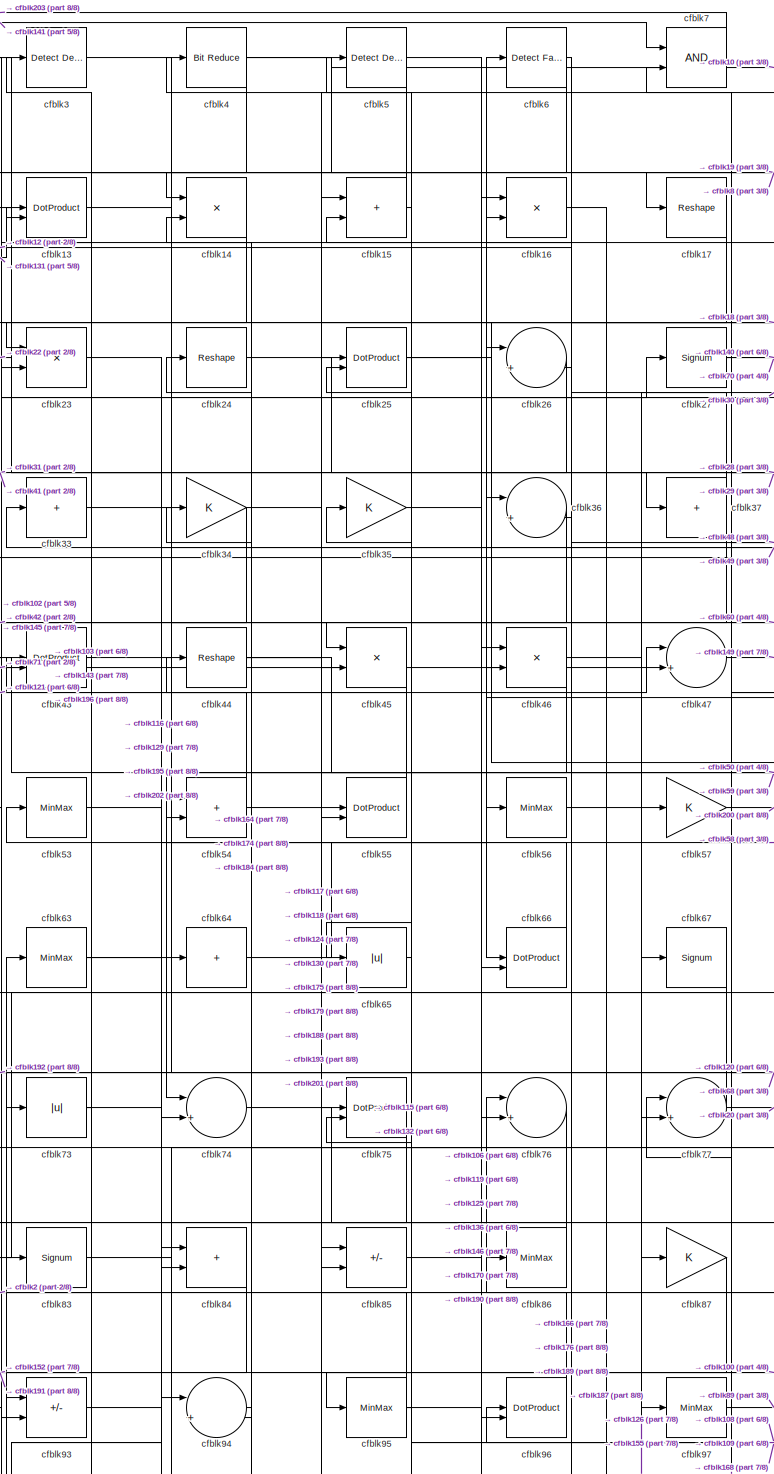
[diagram: root canvas - part 1/8, top center region]
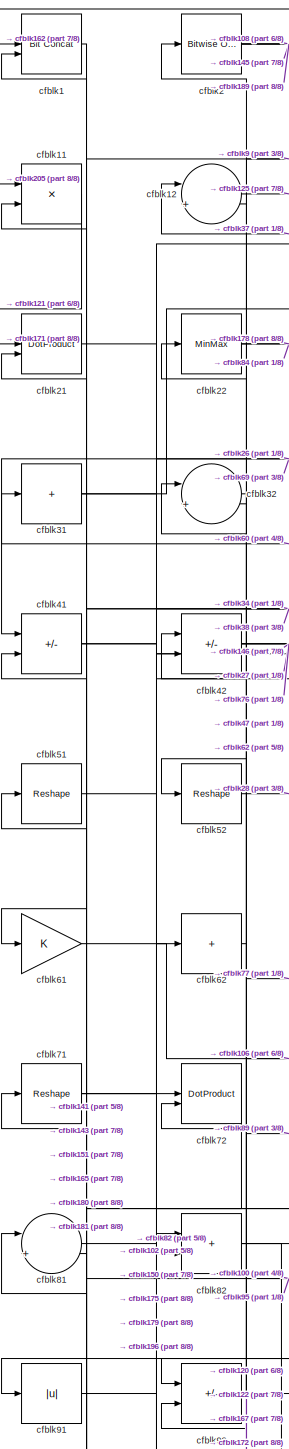
[diagram: root canvas - part 2/8, top left region]
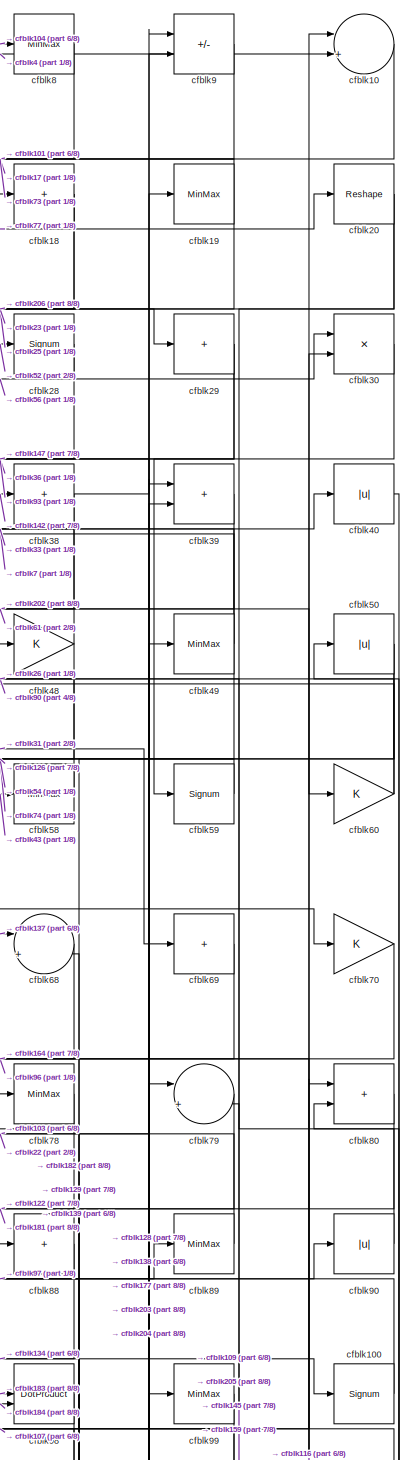
[diagram: root canvas - part 3/8, top right region]
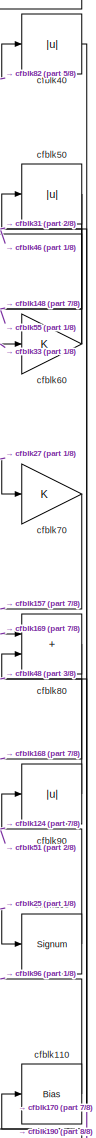
[diagram: root canvas - part 4/8, middle right region]
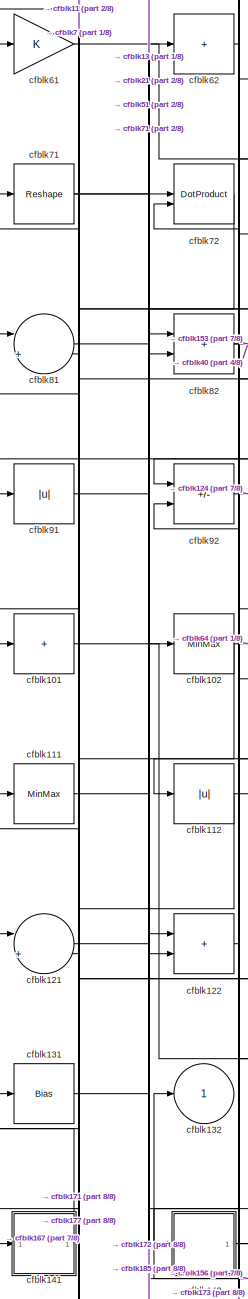
[diagram: root canvas - part 5/8, middle left region]
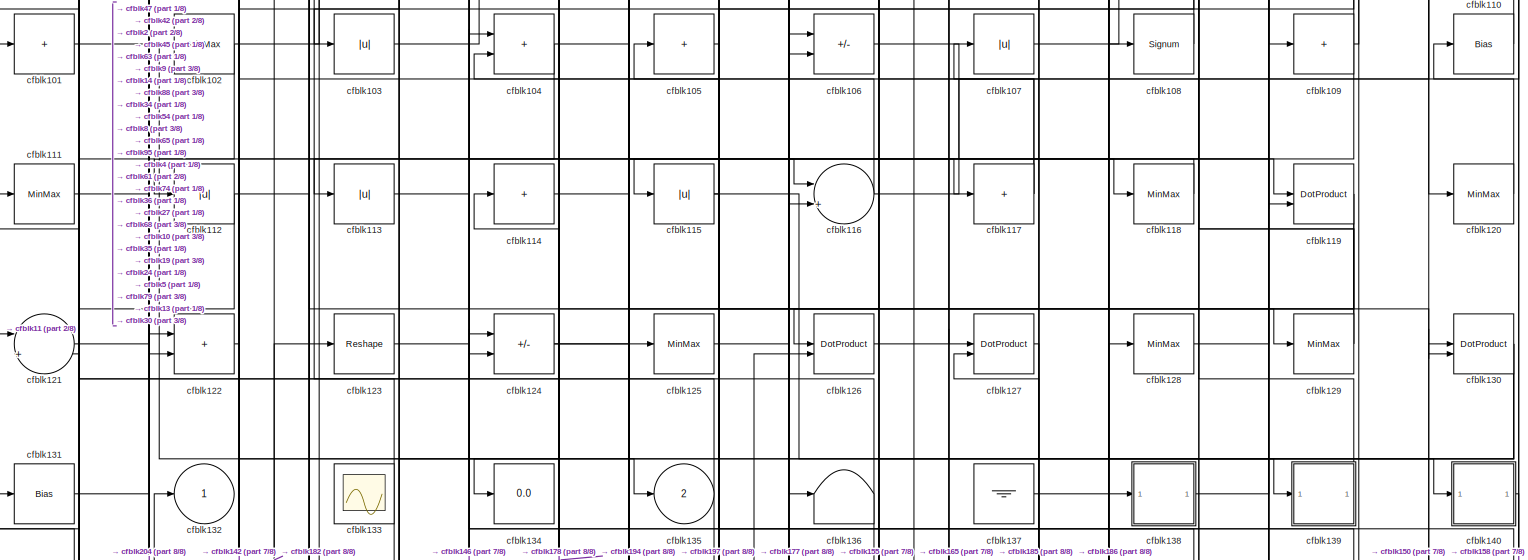
[diagram: root canvas - part 6/8, full width, middle band]
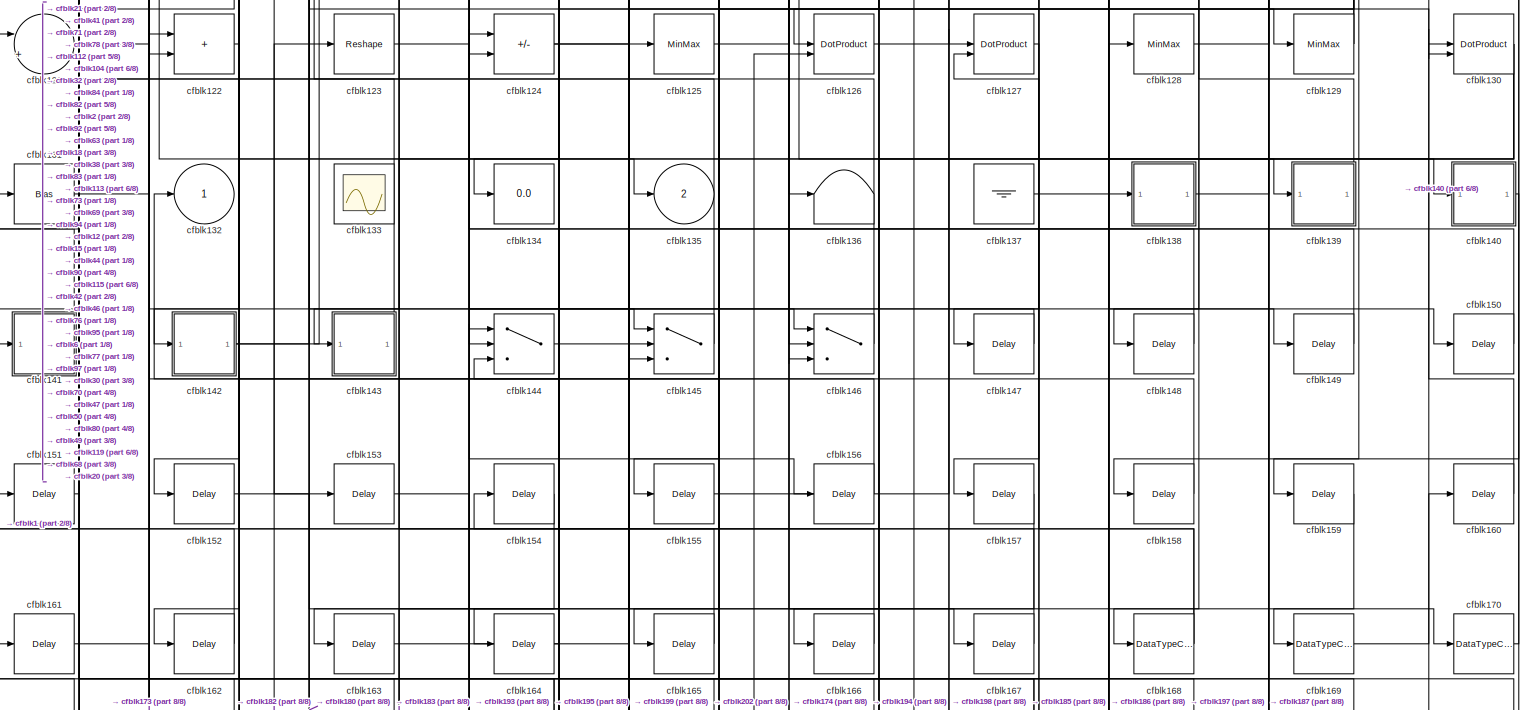
[diagram: root canvas - part 7/8, full width, bottom band]
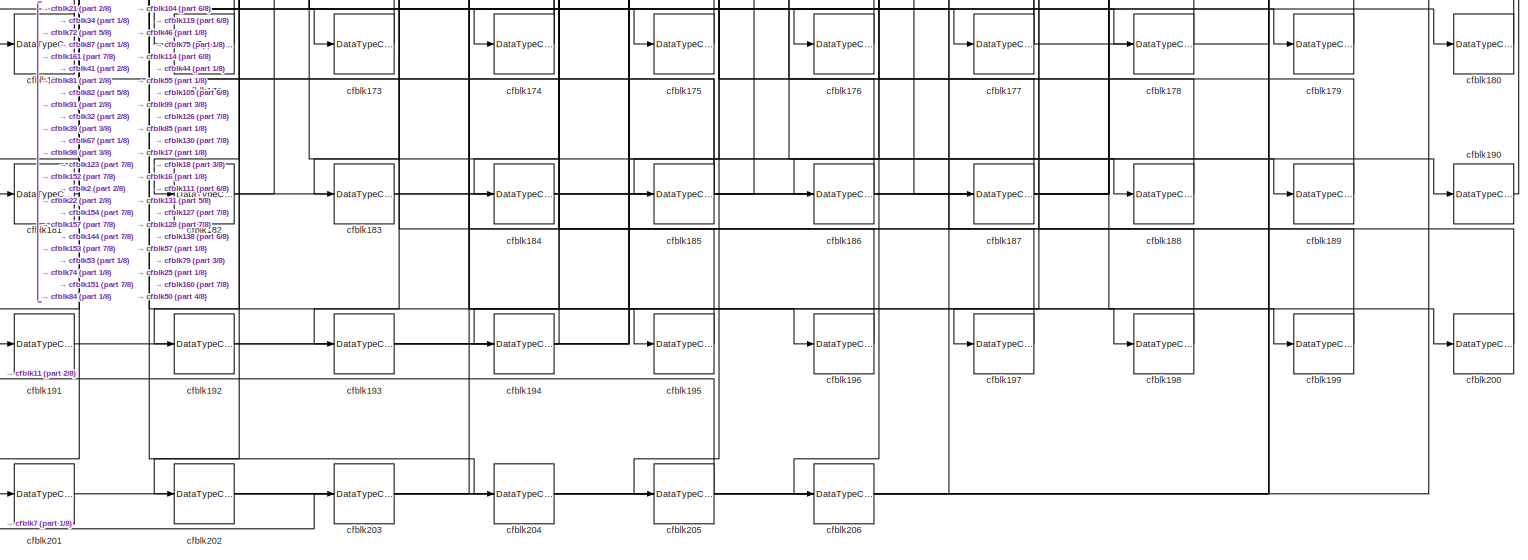
[diagram: root canvas - part 8/8, full width, bottom band]
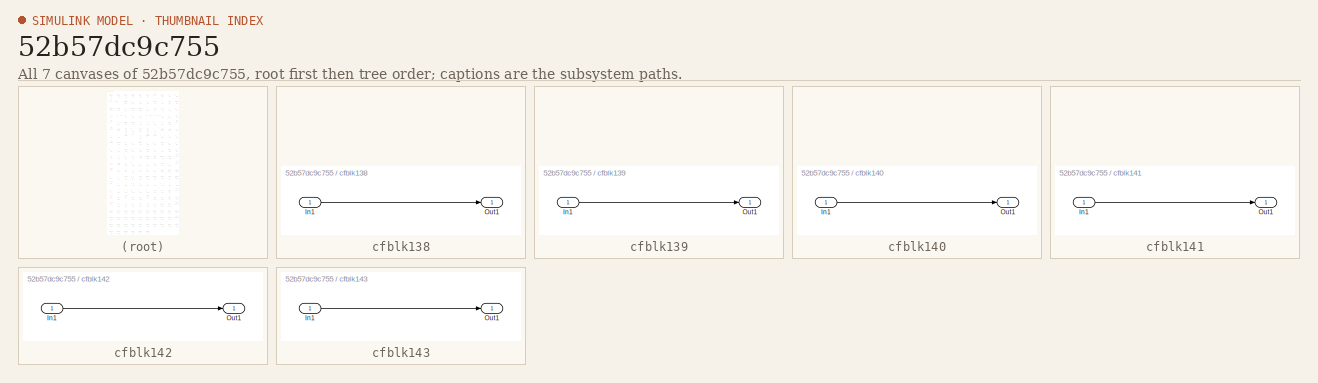
[diagram: thumbnail index - all 7 canvases of the model, root first then tree order]
MODEL slx_52b57dc9c755
KIND model
CONFIG AbsTol = auto
CONFIG EnableMultiTasking = off
CONFIG FixedStep = auto
CONFIG MaxStep = auto
CONFIG MinStep = auto
CONFIG RelTol = 1e-3
CONFIG SampleTimeConstraint = Unconstrained
CONFIG SolverName = VariableStepAuto
CONFIG StartTime = 0.0
CONFIG StopTime = 10.0
BLOCK [Reference] cfblk1  REF=hdlsllib/Logic and Bit
Operations/Bit Concat
  SourceBlock = hdlsllib/Logic and Bit\nOperations/Bit Concat
  SourceType = Bit Concat
BLOCK [Sum] cfblk10
  Inputs = |++
BLOCK [Signum] cfblk100
BLOCK [Sum] cfblk101
  IconShape = rectangular
  Inputs = +
BLOCK [MinMax] cfblk102
BLOCK [Abs] cfblk103
  SaturateOnIntegerOverflow = off
BLOCK [Sum] cfblk104
  IconShape = rectangular
BLOCK [Sum] cfblk105
  IconShape = rectangular
  Inputs = +
BLOCK [Sum] cfblk106
  IconShape = rectangular
  Inputs = +-
BLOCK [Abs] cfblk107
  SaturateOnIntegerOverflow = off
BLOCK [Signum] cfblk108
BLOCK [Sum] cfblk109
  IconShape = rectangular
  Inputs = +
BLOCK [Product] cfblk11
  Inputs = */
  RndMeth = Zero
  SaturateOnIntegerOverflow = on
BLOCK [Bias] cfblk110
  Bias = 0.0
  SaturateOnIntegerOverflow = off
BLOCK [MinMax] cfblk111
BLOCK [Abs] cfblk112
  SaturateOnIntegerOverflow = off
BLOCK [Abs] cfblk113
  SaturateOnIntegerOverflow = off
BLOCK [Sum] cfblk114
  IconShape = rectangular
  Inputs = +
BLOCK [Abs] cfblk115
  SaturateOnIntegerOverflow = off
BLOCK [Sum] cfblk116
  Inputs = |++
BLOCK [Sum] cfblk117
  IconShape = rectangular
  Inputs = +
BLOCK [MinMax] cfblk118
BLOCK [DotProduct] cfblk119
  OutDataTypeStr = Inherit: Inherit via internal rule
BLOCK [Sum] cfblk12
  Inputs = |++
BLOCK [MinMax] cfblk120
BLOCK [Sum] cfblk121
  Inputs = |++
BLOCK [Sum] cfblk122
  IconShape = rectangular
BLOCK [Reshape] cfblk123
BLOCK [Sum] cfblk124
  IconShape = rectangular
  Inputs = +-
BLOCK [MinMax] cfblk125
BLOCK [DotProduct] cfblk126
  OutDataTypeStr = Inherit: Inherit via internal rule
BLOCK [DotProduct] cfblk127
  OutDataTypeStr = Inherit: Inherit via internal rule
BLOCK [MinMax] cfblk128
BLOCK [MinMax] cfblk129
BLOCK [DotProduct] cfblk13
  OutDataTypeStr = Inherit: Inherit via internal rule
BLOCK [DotProduct] cfblk130
  OutDataTypeStr = Inherit: Inherit via internal rule
BLOCK [Bias] cfblk131
  Bias = 0.0
  SaturateOnIntegerOverflow = off
BLOCK [Outport] cfblk132
  VectorParamsAs1DForOutWhenUnconnected = off
BLOCK [Scope] cfblk133
  Floating = on
  NumInputPorts = 1
  ScopeSpecificationString = Simulink.scopes.TimeScopeBlockCfg('CurrentConfiguration', extmgr.ConfigurationSet(extmgr.Configuration('Core','General UI',true,'FigureColor',[0.156862745098039 0.156862745098039 0.156862745098039]),extmgr.Configuration('Core','Source UI',true),extmgr.Configuration('Sources','WiredSimulink',true,'DataLoggingVariableName','ScopeData1','DataLoggingSaveFormat','StructureWithTime','DataLoggingLimitDat...<+2713ch>
BLOCK [Display] cfblk134
  Decimation = 1
BLOCK [Outport] cfblk135
  Port = 2
  VectorParamsAs1DForOutWhenUnconnected = off
BLOCK [Terminator] cfblk136
BLOCK [Ground] cfblk137
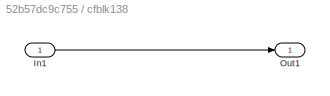
BLOCK [SubSystem] cfblk138
  LibrarySourceBlock = hdlsllib/Ports &\nSubsystems/Subsystem
BLOCK [Inport] cfblk138/In1
BLOCK [Outport] cfblk138/Out1
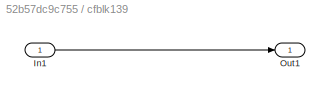
BLOCK [SubSystem] cfblk139
  LibrarySourceBlock = hdlsllib/Ports &\nSubsystems/Subsystem
BLOCK [Inport] cfblk139/In1
BLOCK [Outport] cfblk139/Out1
BLOCK [Product] cfblk14
  Inputs = */
  RndMeth = Zero
  SaturateOnIntegerOverflow = on
BLOCK [SubSystem] cfblk140
  LibrarySourceBlock = hdlsllib/Ports &\nSubsystems/Subsystem
BLOCK [Inport] cfblk140/In1
BLOCK [Outport] cfblk140/Out1
BLOCK [SubSystem] cfblk141
  LibrarySourceBlock = hdlsllib/Ports &\nSubsystems/Subsystem
BLOCK [Inport] cfblk141/In1
BLOCK [Outport] cfblk141/Out1
BLOCK [SubSystem] cfblk142
  LibrarySourceBlock = hdlsllib/Ports &\nSubsystems/Subsystem
BLOCK [Inport] cfblk142/In1
BLOCK [Outport] cfblk142/Out1
BLOCK [SubSystem] cfblk143
  LibrarySourceBlock = hdlsllib/Ports &\nSubsystems/Subsystem
BLOCK [Inport] cfblk143/In1
BLOCK [Outport] cfblk143/Out1
BLOCK [Switch] cfblk144
  InputSameDT = off
  SaturateOnIntegerOverflow = off
BLOCK [Switch] cfblk145
  InputSameDT = off
  SaturateOnIntegerOverflow = off
BLOCK [Switch] cfblk146
  InputSameDT = off
  SaturateOnIntegerOverflow = off
BLOCK [Delay] cfblk147
  InputPortMap = u0
  SampleTime = 1
BLOCK [Delay] cfblk148
  InputPortMap = u0
  SampleTime = 1
BLOCK [Delay] cfblk149
  InputPortMap = u0
  SampleTime = 1
BLOCK [Sum] cfblk15
  IconShape = rectangular
BLOCK [Delay] cfblk150
  InputPortMap = u0
  SampleTime = 1
BLOCK [Delay] cfblk151
  InputPortMap = u0
  SampleTime = 1
BLOCK [Delay] cfblk152
  InputPortMap = u0
  SampleTime = 1
BLOCK [Delay] cfblk153
  InputPortMap = u0
  SampleTime = 1
BLOCK [Delay] cfblk154
  InputPortMap = u0
  SampleTime = 1
BLOCK [Delay] cfblk155
  InputPortMap = u0
  SampleTime = 1
BLOCK [Delay] cfblk156
  InputPortMap = u0
  SampleTime = 1
BLOCK [Delay] cfblk157
  InputPortMap = u0
  SampleTime = 1
BLOCK [Delay] cfblk158
  InputPortMap = u0
  SampleTime = 1
BLOCK [Delay] cfblk159
  InputPortMap = u0
  SampleTime = 1
BLOCK [Product] cfblk16
  Inputs = */
  RndMeth = Zero
  SaturateOnIntegerOverflow = on
BLOCK [Delay] cfblk160
  InputPortMap = u0
  SampleTime = 1
BLOCK [Delay] cfblk161
  InputPortMap = u0
  SampleTime = 1
BLOCK [Delay] cfblk162
  InputPortMap = u0
  SampleTime = 1
BLOCK [Delay] cfblk163
  InputPortMap = u0
  SampleTime = 1
BLOCK [Delay] cfblk164
  InputPortMap = u0
  SampleTime = 1
BLOCK [Delay] cfblk165
  InputPortMap = u0
  SampleTime = 1
BLOCK [Delay] cfblk166
  InputPortMap = u0
  SampleTime = 1
BLOCK [Delay] cfblk167
  InputPortMap = u0
  SampleTime = 1
BLOCK [DataTypeConversion] cfblk168
  RndMeth = Floor
  SaturateOnIntegerOverflow = off
BLOCK [DataTypeConversion] cfblk169
  OutDataTypeStr = uint8
  RndMeth = Floor
  SaturateOnIntegerOverflow = off
BLOCK [Reshape] cfblk17
BLOCK [DataTypeConversion] cfblk170
  OutDataTypeStr = uint8
  RndMeth = Floor
  SaturateOnIntegerOverflow = off
BLOCK [DataTypeConversion] cfblk171
  OutDataTypeStr = uint8
  RndMeth = Floor
  SaturateOnIntegerOverflow = off
BLOCK [DataTypeConversion] cfblk172
  OutDataTypeStr = uint8
  RndMeth = Floor
  SaturateOnIntegerOverflow = off
BLOCK [DataTypeConversion] cfblk173
  OutDataTypeStr = uint8
  RndMeth = Floor
  SaturateOnIntegerOverflow = off
BLOCK [DataTypeConversion] cfblk174
  RndMeth = Floor
  SaturateOnIntegerOverflow = off
BLOCK [DataTypeConversion] cfblk175
  OutDataTypeStr = uint8
  RndMeth = Floor
  SaturateOnIntegerOverflow = off
BLOCK [DataTypeConversion] cfblk176
  OutDataTypeStr = uint8
  RndMeth = Floor
  SaturateOnIntegerOverflow = off
BLOCK [DataTypeConversion] cfblk177
  RndMeth = Floor
  SaturateOnIntegerOverflow = off
BLOCK [DataTypeConversion] cfblk178
  OutDataTypeStr = uint8
  RndMeth = Floor
  SaturateOnIntegerOverflow = off
BLOCK [DataTypeConversion] cfblk179
  OutDataTypeStr = uint8
  RndMeth = Floor
  SaturateOnIntegerOverflow = off
BLOCK [Sum] cfblk18
  IconShape = rectangular
  Inputs = +
BLOCK [DataTypeConversion] cfblk180
  OutDataTypeStr = uint8
  RndMeth = Floor
  SaturateOnIntegerOverflow = off
BLOCK [DataTypeConversion] cfblk181
  OutDataTypeStr = uint8
  RndMeth = Floor
  SaturateOnIntegerOverflow = off
BLOCK [DataTypeConversion] cfblk182
  RndMeth = Floor
  SaturateOnIntegerOverflow = off
BLOCK [DataTypeConversion] cfblk183
  OutDataTypeStr = uint8
  RndMeth = Floor
  SaturateOnIntegerOverflow = off
BLOCK [DataTypeConversion] cfblk184
  OutDataTypeStr = uint8
  RndMeth = Floor
  SaturateOnIntegerOverflow = off
BLOCK [DataTypeConversion] cfblk185
  RndMeth = Floor
  SaturateOnIntegerOverflow = off
BLOCK [DataTypeConversion] cfblk186
  OutDataTypeStr = uint8
  RndMeth = Floor
  SaturateOnIntegerOverflow = off
BLOCK [DataTypeConversion] cfblk187
  RndMeth = Floor
  SaturateOnIntegerOverflow = off
BLOCK [DataTypeConversion] cfblk188
  OutDataTypeStr = uint8
  RndMeth = Floor
  SaturateOnIntegerOverflow = off
BLOCK [DataTypeConversion] cfblk189
  OutDataTypeStr = uint8
  RndMeth = Floor
  SaturateOnIntegerOverflow = off
BLOCK [MinMax] cfblk19
BLOCK [DataTypeConversion] cfblk190
  OutDataTypeStr = uint8
  RndMeth = Floor
  SaturateOnIntegerOverflow = off
BLOCK [DataTypeConversion] cfblk191
  OutDataTypeStr = uint8
  RndMeth = Floor
  SaturateOnIntegerOverflow = off
BLOCK [DataTypeConversion] cfblk192
  OutDataTypeStr = uint8
  RndMeth = Floor
  SaturateOnIntegerOverflow = off
BLOCK [DataTypeConversion] cfblk193
  OutDataTypeStr = uint8
  RndMeth = Floor
  SaturateOnIntegerOverflow = off
BLOCK [DataTypeConversion] cfblk194
  OutDataTypeStr = uint8
  RndMeth = Floor
  SaturateOnIntegerOverflow = off
BLOCK [DataTypeConversion] cfblk195
  OutDataTypeStr = uint8
  RndMeth = Floor
  SaturateOnIntegerOverflow = off
BLOCK [DataTypeConversion] cfblk196
  OutDataTypeStr = uint8
  RndMeth = Floor
  SaturateOnIntegerOverflow = off
BLOCK [DataTypeConversion] cfblk197
  OutDataTypeStr = uint8
  RndMeth = Floor
  SaturateOnIntegerOverflow = off
BLOCK [DataTypeConversion] cfblk198
  OutDataTypeStr = uint8
  RndMeth = Floor
  SaturateOnIntegerOverflow = off
BLOCK [DataTypeConversion] cfblk199
  OutDataTypeStr = uint8
  RndMeth = Floor
  SaturateOnIntegerOverflow = off
BLOCK [Reference] cfblk2  REF=simulink/Logic and Bit
Operations/Bitwise
Operator
  LibrarySourceBlock = hdlsllib/Logic and Bit\nOperations/Bitwise\nOperator
  SourceBlock = simulink/Logic and Bit\nOperations/Bitwise\nOperator
  SourceType = Bitwise Operator
BLOCK [Reshape] cfblk20
BLOCK [DataTypeConversion] cfblk200
  OutDataTypeStr = uint8
  RndMeth = Floor
  SaturateOnIntegerOverflow = off
BLOCK [DataTypeConversion] cfblk201
  OutDataTypeStr = uint8
  RndMeth = Floor
  SaturateOnIntegerOverflow = off
BLOCK [DataTypeConversion] cfblk202
  RndMeth = Floor
  SaturateOnIntegerOverflow = off
BLOCK [DataTypeConversion] cfblk203
  OutDataTypeStr = uint8
  RndMeth = Floor
  SaturateOnIntegerOverflow = off
BLOCK [DataTypeConversion] cfblk204
  OutDataTypeStr = uint8
  RndMeth = Floor
  SaturateOnIntegerOverflow = off
BLOCK [DataTypeConversion] cfblk205
  OutDataTypeStr = uint8
  RndMeth = Floor
  SaturateOnIntegerOverflow = off
BLOCK [DataTypeConversion] cfblk206
  OutDataTypeStr = uint8
  RndMeth = Floor
  SaturateOnIntegerOverflow = off
BLOCK [DotProduct] cfblk21
  OutDataTypeStr = Inherit: Inherit via internal rule
BLOCK [MinMax] cfblk22
BLOCK [Product] cfblk23
  Inputs = */
  RndMeth = Zero
  SaturateOnIntegerOverflow = on
BLOCK [Reshape] cfblk24
BLOCK [DotProduct] cfblk25
  OutDataTypeStr = Inherit: Inherit via internal rule
BLOCK [Sum] cfblk26
  Inputs = |++
BLOCK [Signum] cfblk27
BLOCK [Signum] cfblk28
BLOCK [Sum] cfblk29
  IconShape = rectangular
  Inputs = +
BLOCK [Reference] cfblk3  REF=simulink/Logic and Bit
Operations/Detect
Decrease
  LibrarySourceBlock = hdlsllib/Logic and Bit\nOperations/Detect\nDecrease
  SourceBlock = simulink/Logic and Bit\nOperations/Detect\nDecrease
  SourceType = Detect Decrease
BLOCK [Product] cfblk30
  Inputs = */
  RndMeth = Zero
  SaturateOnIntegerOverflow = on
BLOCK [Sum] cfblk31
  IconShape = rectangular
  Inputs = +
BLOCK [Sum] cfblk32
  Inputs = |++
BLOCK [Sum] cfblk33
  IconShape = rectangular
  Inputs = +
BLOCK [Gain] cfblk34
BLOCK [Gain] cfblk35
BLOCK [Sum] cfblk36
  Inputs = |++
BLOCK [Sum] cfblk37
  IconShape = rectangular
  Inputs = +
BLOCK [Sum] cfblk38
  IconShape = rectangular
  Inputs = +
BLOCK [Sum] cfblk39
  IconShape = rectangular
BLOCK [Reference] cfblk4  REF=hdlsllib/Logic and Bit
Operations/Bit Reduce
  SourceBlock = hdlsllib/Logic and Bit\nOperations/Bit Reduce
  SourceType = Bit Reduce
BLOCK [Abs] cfblk40
  SaturateOnIntegerOverflow = off
BLOCK [Sum] cfblk41
  IconShape = rectangular
  Inputs = +-
BLOCK [Sum] cfblk42
  IconShape = rectangular
  Inputs = +-
BLOCK [DotProduct] cfblk43
  OutDataTypeStr = Inherit: Inherit via internal rule
BLOCK [Reshape] cfblk44
BLOCK [Product] cfblk45
  Inputs = */
  RndMeth = Zero
  SaturateOnIntegerOverflow = on
BLOCK [Product] cfblk46
  Inputs = */
  RndMeth = Zero
  SaturateOnIntegerOverflow = on
BLOCK [Sum] cfblk47
  Inputs = |++
BLOCK [Gain] cfblk48
BLOCK [MinMax] cfblk49
BLOCK [Reference] cfblk5  REF=simulink/Logic and Bit
Operations/Detect
Decrease
  LibrarySourceBlock = hdlsllib/Logic and Bit\nOperations/Detect\nDecrease
  SourceBlock = simulink/Logic and Bit\nOperations/Detect\nDecrease
  SourceType = Detect Decrease
BLOCK [Abs] cfblk50
  SaturateOnIntegerOverflow = off
BLOCK [Reshape] cfblk51
BLOCK [Reshape] cfblk52
BLOCK [MinMax] cfblk53
BLOCK [Sum] cfblk54
  IconShape = rectangular
BLOCK [DotProduct] cfblk55
  OutDataTypeStr = Inherit: Inherit via internal rule
BLOCK [MinMax] cfblk56
BLOCK [Gain] cfblk57
BLOCK [MinMax] cfblk58
BLOCK [Signum] cfblk59
BLOCK [Reference] cfblk6  REF=hdlsllib/Logic and Bit
Operations/Detect Fall
Negative
  SourceBlock = hdlsllib/Logic and Bit\nOperations/Detect Fall\nNegative
  SourceType = Detect Fall Negative
BLOCK [Gain] cfblk60
BLOCK [Gain] cfblk61
BLOCK [Sum] cfblk62
  IconShape = rectangular
  Inputs = +
BLOCK [MinMax] cfblk63
BLOCK [Sum] cfblk64
  IconShape = rectangular
  Inputs = +
BLOCK [Abs] cfblk65
  SaturateOnIntegerOverflow = off
BLOCK [DotProduct] cfblk66
  OutDataTypeStr = Inherit: Inherit via internal rule
BLOCK [Signum] cfblk67
BLOCK [Sum] cfblk68
  Inputs = |++
BLOCK [Sum] cfblk69
  IconShape = rectangular
  Inputs = +
BLOCK [Logic] cfblk7
  AllPortsSameDT = off
  OutDataTypeStr = boolean
BLOCK [Gain] cfblk70
BLOCK [Reshape] cfblk71
BLOCK [DotProduct] cfblk72
  OutDataTypeStr = Inherit: Inherit via internal rule
BLOCK [Abs] cfblk73
  SaturateOnIntegerOverflow = off
BLOCK [Sum] cfblk74
  Inputs = |++
BLOCK [DotProduct] cfblk75
  OutDataTypeStr = Inherit: Inherit via internal rule
BLOCK [Sum] cfblk76
  Inputs = |++
BLOCK [Sum] cfblk77
  Inputs = |++
BLOCK [MinMax] cfblk78
BLOCK [Sum] cfblk79
  Inputs = |++
BLOCK [MinMax] cfblk8
BLOCK [Sum] cfblk80
  IconShape = rectangular
BLOCK [Sum] cfblk81
  Inputs = |++
BLOCK [Sum] cfblk82
  IconShape = rectangular
BLOCK [Signum] cfblk83
BLOCK [Sum] cfblk84
  IconShape = rectangular
BLOCK [Sum] cfblk85
  IconShape = rectangular
  Inputs = +-
BLOCK [MinMax] cfblk86
BLOCK [Gain] cfblk87
BLOCK [Sum] cfblk88
  IconShape = rectangular
  Inputs = +
BLOCK [MinMax] cfblk89
BLOCK [Sum] cfblk9
  IconShape = rectangular
  Inputs = +-
BLOCK [Abs] cfblk90
  SaturateOnIntegerOverflow = off
BLOCK [Abs] cfblk91
  SaturateOnIntegerOverflow = off
BLOCK [Sum] cfblk92
  IconShape = rectangular
  Inputs = +-
BLOCK [Sum] cfblk93
  IconShape = rectangular
  Inputs = +-
BLOCK [Sum] cfblk94
  Inputs = |++
BLOCK [MinMax] cfblk95
BLOCK [DotProduct] cfblk96
  OutDataTypeStr = Inherit: Inherit via internal rule
BLOCK [MinMax] cfblk97
BLOCK [DotProduct] cfblk98
  OutDataTypeStr = Inherit: Inherit via internal rule
BLOCK [MinMax] cfblk99
LINE cfblk100:1 -> cfblk51:1
LINE cfblk101:1 -> cfblk135:1
NET cfblk102:1 -> cfblk112:1, cfblk64:1
LINE cfblk103:1 -> cfblk9:1
NET cfblk104:1 -> cfblk142:1, cfblk8:1
LINE cfblk105:1 -> cfblk185:1
LINE cfblk106:1 -> cfblk119:1
LINE cfblk107:1 -> cfblk10:1
LINE cfblk108:1 -> cfblk35:1
NET cfblk109:1 -> cfblk121:2, cfblk5:1, cfblk79:2
LINE cfblk10:1 -> cfblk101:1
LINE cfblk110:1 -> cfblk96:1
LINE cfblk111:1 -> cfblk204:1
NET cfblk112:1 -> cfblk141:1, cfblk167:1
LINE cfblk113:1 -> cfblk146:1
LINE cfblk114:1 -> cfblk177:1
NET cfblk115:1 -> cfblk139:1, cfblk165:1
NET cfblk116:1 -> cfblk14:2, cfblk30:2
NET cfblk117:1 -> cfblk107:1, cfblk36:2
LINE cfblk118:1 -> cfblk113:1
NET cfblk119:1 -> cfblk155:1, cfblk194:1
LINE cfblk11:1 -> cfblk121:1
LINE cfblk120:1 -> cfblk42:1
LINE cfblk121:1 -> cfblk47:1
LINE cfblk122:1 -> cfblk32:1
LINE cfblk123:1 -> cfblk156:1
NET cfblk124:1 -> cfblk15:1, cfblk90:1
LINE cfblk125:1 -> cfblk46:1
LINE cfblk126:1 -> cfblk97:1
LINE cfblk127:1 -> cfblk197:1
LINE cfblk128:1 -> cfblk49:1
NET cfblk129:1 -> cfblk68:2, cfblk78:1
LINE cfblk12:1 -> cfblk125:1
NET cfblk130:1 -> cfblk162:1, cfblk163:1, cfblk186:1
LINE cfblk131:1 -> cfblk13:1
LINE cfblk137:1 -> cfblk68:1
LINE cfblk138/In1:1 -> cfblk138/Out1:1
LINE cfblk138:1 -> cfblk19:1
LINE cfblk139/In1:1 -> cfblk139/Out1:1
LINE cfblk139:1 -> cfblk88:1
LINE cfblk13:1 -> cfblk120:1
LINE cfblk140/In1:1 -> cfblk140/Out1:1
LINE cfblk140:1 -> cfblk158:1
LINE cfblk141/In1:1 -> cfblk141/Out1:1
NET cfblk141:1 -> cfblk11:2, cfblk7:1
LINE cfblk142/In1:1 -> cfblk142/Out1:1
NET cfblk142:1 -> cfblk18:1, cfblk38:1
LINE cfblk143/In1:1 -> cfblk143/Out1:1
LINE cfblk143:1 -> cfblk71:1
LINE cfblk144:1 -> cfblk198:1
LINE cfblk145:1 -> cfblk63:1
LINE cfblk146:1 -> cfblk41:2
LINE cfblk147:1 -> cfblk144:2
LINE cfblk148:1 -> cfblk124:1
LINE cfblk149:1 -> cfblk15:2
LINE cfblk14:1 -> cfblk93:2
LINE cfblk150:1 -> cfblk104:1
LINE cfblk151:1 -> cfblk21:2
LINE cfblk152:1 -> cfblk180:1
LINE cfblk153:1 -> cfblk199:1
LINE cfblk154:1 -> cfblk193:1
LINE cfblk155:1 -> cfblk77:2
LINE cfblk156:1 -> cfblk92:2
LINE cfblk157:1 -> cfblk183:1
LINE cfblk158:1 -> cfblk122:1
LINE cfblk159:1 -> cfblk169:1
NET cfblk15:1 -> cfblk4:1, cfblk95:1
LINE cfblk160:1 -> cfblk130:1
LINE cfblk161:1 -> cfblk173:1
LINE cfblk162:1 -> cfblk1:1
LINE cfblk163:1 -> cfblk145:3
LINE cfblk164:1 -> cfblk94:2
LINE cfblk165:1 -> cfblk1:2
LINE cfblk166:1 -> cfblk144:3
LINE cfblk167:1 -> cfblk32:2
NET cfblk168:1 -> cfblk77:1, cfblk83:1
LINE cfblk169:1 -> cfblk80:1
LINE cfblk16:1 -> cfblk187:1
LINE cfblk170:1 -> cfblk80:2
LINE cfblk171:1 -> cfblk21:1
LINE cfblk172:1 -> cfblk72:1
LINE cfblk173:1 -> cfblk72:2
NET cfblk174:1 -> cfblk151:1, cfblk84:1
LINE cfblk175:1 -> cfblk75:1
LINE cfblk176:1 -> cfblk75:2
NET cfblk177:1 -> cfblk111:1, cfblk131:1, cfblk79:1
LINE cfblk178:1 -> cfblk114:1
LINE cfblk179:1 -> cfblk25:1
NET cfblk17:1 -> cfblk176:1, cfblk66:1
LINE cfblk180:1 -> cfblk81:1
LINE cfblk181:1 -> cfblk81:2
NET cfblk182:1 -> cfblk123:1, cfblk138:1
LINE cfblk183:1 -> cfblk98:1
LINE cfblk184:1 -> cfblk98:2
NET cfblk185:1 -> cfblk126:2, cfblk161:1, cfblk82:1
LINE cfblk186:1 -> cfblk105:1
NET cfblk187:1 -> cfblk128:1, cfblk25:2
LINE cfblk188:1 -> cfblk16:1
LINE cfblk189:1 -> cfblk16:2
NET cfblk18:1 -> cfblk206:1, cfblk23:1
LINE cfblk190:1 -> cfblk50:1
LINE cfblk191:1 -> cfblk85:1
LINE cfblk192:1 -> cfblk85:2
LINE cfblk193:1 -> cfblk55:1
LINE cfblk194:1 -> cfblk154:1
LINE cfblk195:1 -> cfblk144:1
LINE cfblk196:1 -> cfblk53:1
LINE cfblk197:1 -> cfblk104:2
LINE cfblk198:1 -> cfblk127:1
LINE cfblk199:1 -> cfblk127:2
NET cfblk19:1 -> cfblk17:1, cfblk43:2
LINE cfblk1:1 -> cfblk91:1
LINE cfblk200:1 -> cfblk44:1
LINE cfblk201:1 -> cfblk57:1
NET cfblk202:1 -> cfblk160:1, cfblk74:2
LINE cfblk203:1 -> cfblk39:1
LINE cfblk204:1 -> cfblk39:2
LINE cfblk205:1 -> cfblk11:1
LINE cfblk206:1 -> cfblk99:1
NET cfblk20:1 -> cfblk145:2, cfblk159:1
LINE cfblk21:1 -> cfblk102:1
NET cfblk22:1 -> cfblk178:1, cfblk84:2
LINE cfblk23:1 -> cfblk86:1
LINE cfblk24:1 -> cfblk109:1
NET cfblk25:1 -> cfblk100:1, cfblk29:1
LINE cfblk26:1 -> cfblk41:1
NET cfblk27:1 -> cfblk140:1, cfblk70:1
LINE cfblk28:1 -> cfblk93:1
NET cfblk29:1 -> cfblk36:1, cfblk59:1
NET cfblk2:1 -> cfblk108:1, cfblk145:1, cfblk189:1
LINE cfblk30:1 -> cfblk147:1
NET cfblk31:1 -> cfblk37:1, cfblk69:1
LINE cfblk32:1 -> cfblk172:1
LINE cfblk33:1 -> cfblk60:1
NET cfblk34:1 -> cfblk117:1, cfblk201:1, cfblk42:2
LINE cfblk35:1 -> cfblk136:1
LINE cfblk36:1 -> cfblk65:1
NET cfblk37:1 -> cfblk12:1, cfblk45:2
NET cfblk38:1 -> cfblk61:1, cfblk9:2
LINE cfblk39:1 -> cfblk202:1
LINE cfblk3:1 -> cfblk45:1
LINE cfblk40:1 -> cfblk110:1
NET cfblk41:1 -> cfblk150:1, cfblk175:1
NET cfblk42:1 -> cfblk146:3, cfblk27:1, cfblk76:2
LINE cfblk43:1 -> cfblk58:1
NET cfblk44:1 -> cfblk130:2, cfblk188:1, cfblk87:1
LINE cfblk45:1 -> cfblk103:1
NET cfblk46:1 -> cfblk184:1, cfblk67:1
LINE cfblk47:1 -> cfblk149:1
NET cfblk48:1 -> cfblk74:1, cfblk7:2
NET cfblk49:1 -> cfblk126:1, cfblk26:2, cfblk33:1
NET cfblk4:1 -> cfblk10:2, cfblk116:2, cfblk14:1
NET cfblk50:1 -> cfblk148:1, cfblk55:2
LINE cfblk51:1 -> cfblk82:2
LINE cfblk52:1 -> cfblk28:1
LINE cfblk53:1 -> cfblk195:1
NET cfblk54:1 -> cfblk118:1, cfblk43:1
LINE cfblk55:1 -> cfblk24:1
LINE cfblk56:1 -> cfblk30:1
LINE cfblk57:1 -> cfblk200:1
LINE cfblk58:1 -> cfblk26:1
LINE cfblk59:1 -> cfblk54:1
NET cfblk5:1 -> cfblk119:2, cfblk23:2
NET cfblk60:1 -> cfblk31:1, cfblk46:2
LINE cfblk61:1 -> cfblk106:2
LINE cfblk62:1 -> cfblk92:1
NET cfblk63:1 -> cfblk116:1, cfblk94:1
LINE cfblk64:1 -> cfblk6:1
LINE cfblk65:1 -> cfblk132:1
LINE cfblk66:1 -> cfblk13:2
LINE cfblk67:1 -> cfblk192:1
LINE cfblk68:1 -> cfblk96:2
LINE cfblk69:1 -> cfblk164:1
NET cfblk6:1 -> cfblk143:1, cfblk166:1
LINE cfblk70:1 -> cfblk157:1
NET cfblk71:1 -> cfblk47:2, cfblk62:1
LINE cfblk72:1 -> cfblk171:1
NET cfblk73:1 -> cfblk129:1, cfblk3:1
LINE cfblk74:1 -> cfblk106:1
LINE cfblk75:1 -> cfblk174:1
LINE cfblk76:1 -> cfblk146:2
NET cfblk77:1 -> cfblk12:2, cfblk20:1
LINE cfblk78:1 -> cfblk122:2
LINE cfblk79:1 -> cfblk181:1
LINE cfblk7:1 -> cfblk203:1
LINE cfblk80:1 -> cfblk168:1
LINE cfblk81:1 -> cfblk179:1
NET cfblk82:1 -> cfblk153:1, cfblk40:1
LINE cfblk83:1 -> cfblk66:2
LINE cfblk84:1 -> cfblk152:1
LINE cfblk85:1 -> cfblk190:1
LINE cfblk86:1 -> cfblk54:2
LINE cfblk87:1 -> cfblk191:1
LINE cfblk88:1 -> cfblk134:1
LINE cfblk89:1 -> cfblk22:1
LINE cfblk8:1 -> cfblk73:1
LINE cfblk90:1 -> cfblk48:1
LINE cfblk91:1 -> cfblk196:1
LINE cfblk92:1 -> cfblk124:2
LINE cfblk93:1 -> cfblk56:1
LINE cfblk94:1 -> cfblk34:1
NET cfblk95:1 -> cfblk115:1, cfblk170:1, cfblk2:1
LINE cfblk96:1 -> cfblk76:1
LINE cfblk97:1 -> cfblk89:1
LINE cfblk98:1 -> cfblk182:1
LINE cfblk99:1 -> cfblk205:1
LINE cfblk9:1 -> cfblk52:1
note: NET lines group one-source signal fan-out (src -> all destinations, sorted); 1:1 wires keep LINE
